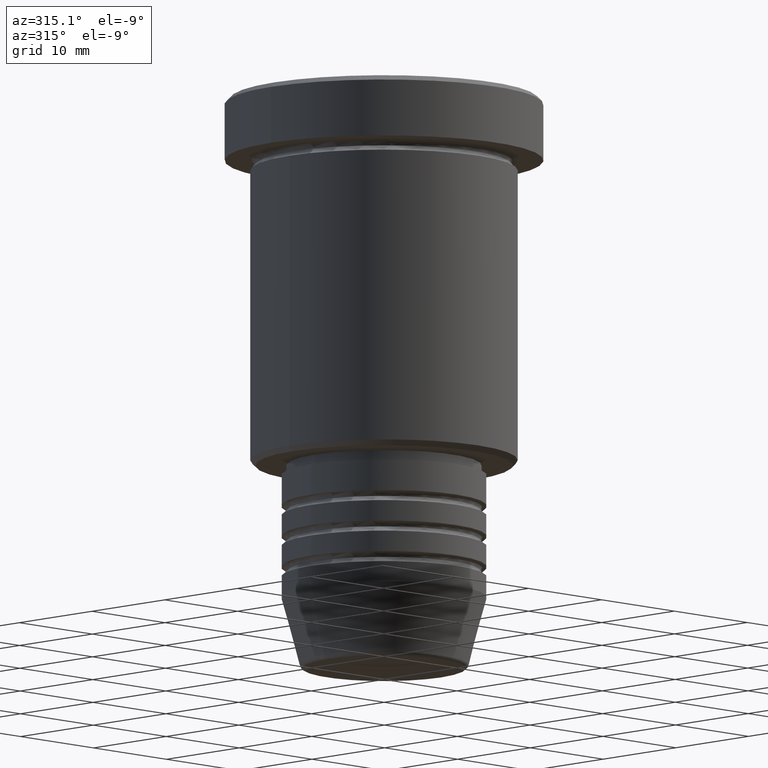
[diagram: clean part render]
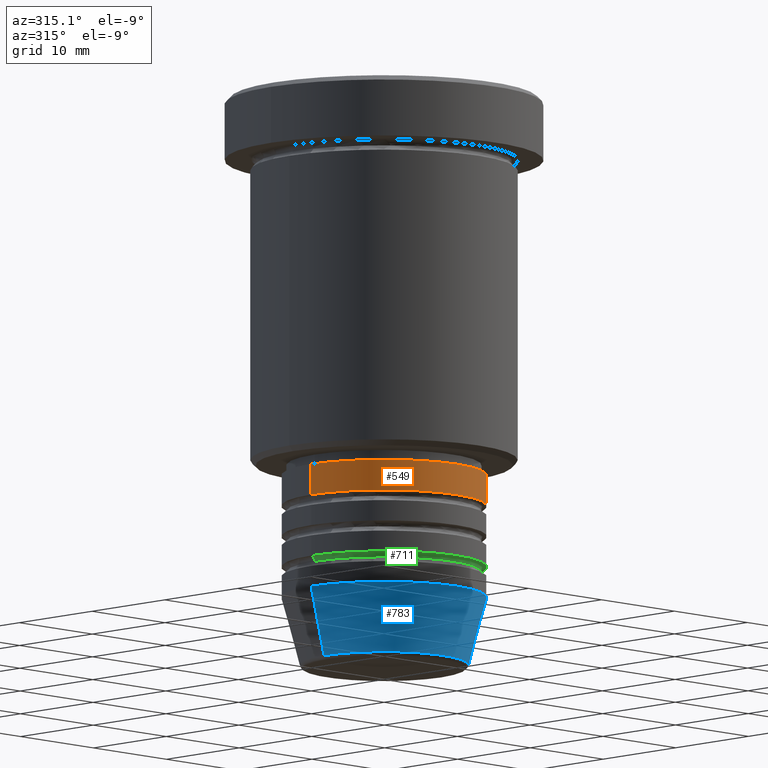
[diagram: same view with three faces highlighted in distinct colors, each labeled with its STEP entity id]
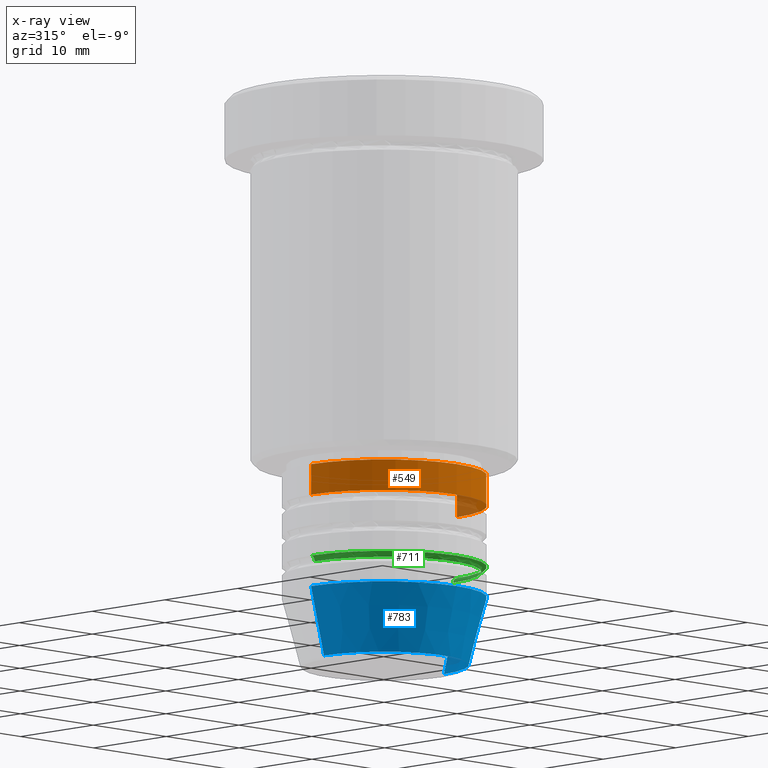
[diagram: x-ray of the same camera — body ghosted, the three highlighted faces saturated]
A machine part, auxiliary view with three faces highlighted in distinct colors.
The next image is the same camera in x-ray (body ghosted, the three faces saturated) — at least one of them is partly hidden behind the body in this view.
Their STEP definitions:

[orange] entity #549 — the highlighted cylindrical surface (partial cylindrical patch) has radius 10 mm, axis along (-0, -0, 1).
#22 = CARTESIAN_POINT ( 'NONE',  ( 0.000000000000000000, 0.000000000000000000, -37.00000000000000000 ) ) ;
#59 = DIRECTION ( 'NONE',  ( -0.000000000000000000, -0.000000000000000000, 1.000000000000000000 ) ) ;
#68 = LINE ( 'NONE', #988, #815 ) ;
#76 = DIRECTION ( 'NONE',  ( -0.000000000000000000, -0.000000000000000000, 1.000000000000000000 ) ) ;
#119 = CARTESIAN_POINT ( 'NONE',  ( -10.00000000000000000, 1.224646799147353256E-15, -39.99999999999997158 ) ) ;
#123 = DIRECTION ( 'NONE',  ( -0.000000000000000000, -0.000000000000000000, 1.000000000000000000 ) ) ;
#128 = DIRECTION ( 'NONE',  ( 1.000000000000000000, 0.000000000000000000, 0.000000000000000000 ) ) ;
#145 = VERTEX_POINT ( 'NONE', #821 ) ;
#160 = ORIENTED_EDGE ( 'NONE', *, *, #329, .T. ) ;
#161 = VECTOR ( 'NONE', #123, 1000.000000000000000 ) ;
#217 = CARTESIAN_POINT ( 'NONE',  ( -10.00000000000000000, 1.224646799147353256E-15, -37.00000000000000000 ) ) ;
#299 = DIRECTION ( 'NONE',  ( 1.000000000000000000, 0.000000000000000000, 0.000000000000000000 ) ) ;
#329 = EDGE_CURVE ( 'NONE', #417, #145, #439, .T. ) ;
#333 = DIRECTION ( 'NONE',  ( -0.000000000000000000, -0.000000000000000000, 1.000000000000000000 ) ) ;
#340 = CARTESIAN_POINT ( 'NONE',  ( 10.00000000000000000, 0.000000000000000000, -37.00000000000000000 ) ) ;
#349 = CARTESIAN_POINT ( 'NONE',  ( 0.000000000000000000, 0.000000000000000000, -39.99999999999997158 ) ) ;
#401 = FACE_OUTER_BOUND ( 'NONE', #887, .T. ) ;
#404 = LINE ( 'NONE', #503, #161 ) ;
#417 = VERTEX_POINT ( 'NONE', #119 ) ;
#439 = CIRCLE ( 'NONE', #591, 10.00000000000000000 ) ;
#482 = DIRECTION ( 'NONE',  ( -0.000000000000000000, -0.000000000000000000, 1.000000000000000000 ) ) ;
#503 = CARTESIAN_POINT ( 'NONE',  ( 10.00000000000000000, 0.000000000000000000, 0.000000000000000000 ) ) ;
#514 = VERTEX_POINT ( 'NONE', #217 ) ;
#522 = EDGE_CURVE ( 'NONE', #514, #658, #726, .T. ) ;
#549 = ADVANCED_FACE ( 'NONE', ( #401 ), #1018, .T. ) ;
#591 = AXIS2_PLACEMENT_3D ( 'NONE', #349, #76, #715 ) ;
#658 = VERTEX_POINT ( 'NONE', #340 ) ;
#687 = AXIS2_PLACEMENT_3D ( 'NONE', #1065, #333, #128 ) ;
#715 = DIRECTION ( 'NONE',  ( 1.000000000000000000, 0.000000000000000000, 0.000000000000000000 ) ) ;
#726 = CIRCLE ( 'NONE', #825, 10.00000000000000000 ) ;
#748 = EDGE_CURVE ( 'NONE', #417, #514, #68, .T. ) ;
#788 = ORIENTED_EDGE ( 'NONE', *, *, #877, .T. ) ;
#815 = VECTOR ( 'NONE', #59, 1000.000000000000000 ) ;
#821 = CARTESIAN_POINT ( 'NONE',  ( 10.00000000000000000, 0.000000000000000000, -39.99999999999997158 ) ) ;
#825 = AXIS2_PLACEMENT_3D ( 'NONE', #22, #482, #299 ) ;
#877 = EDGE_CURVE ( 'NONE', #145, #658, #404, .T. ) ;
#887 = EDGE_LOOP ( 'NONE', ( #944, #160, #788, #1076 ) ) ;
#944 = ORIENTED_EDGE ( 'NONE', *, *, #748, .F. ) ;
#988 = CARTESIAN_POINT ( 'NONE',  ( -10.00000000000000000, 1.224646799147353256E-15, 0.000000000000000000 ) ) ;
#1018 = CYLINDRICAL_SURFACE ( 'NONE', #687, 10.00000000000000000 ) ;
#1065 = CARTESIAN_POINT ( 'NONE',  ( 0.000000000000000000, 0.000000000000000000, 0.000000000000000000 ) ) ;
#1076 = ORIENTED_EDGE ( 'NONE', *, *, #522, .F. ) ;

[blue] entity #783 — the highlighted conical surface has half-angle 15 deg.
#58 = VERTEX_POINT ( 'NONE', #1066 ) ;
#79 = AXIS2_PLACEMENT_3D ( 'NONE', #719, #1083, #181 ) ;
#137 = ORIENTED_EDGE ( 'NONE', *, *, #732, .T. ) ;
#181 = DIRECTION ( 'NONE',  ( 1.000000000000000000, 0.000000000000000000, 0.000000000000000000 ) ) ;
#183 = CARTESIAN_POINT ( 'NONE',  ( 10.00000000000000000, 0.000000000000000000, -48.99999999999999289 ) ) ;
#187 = EDGE_CURVE ( 'NONE', #332, #577, #562, .T. ) ;
#226 = VERTEX_POINT ( 'NONE', #183 ) ;
#234 = EDGE_LOOP ( 'NONE', ( #1140, #137, #760, #596 ) ) ;
#278 = AXIS2_PLACEMENT_3D ( 'NONE', #1169, #720, #895 ) ;
#320 = DIRECTION ( 'NONE',  ( -0.000000000000000000, -0.000000000000000000, 1.000000000000000000 ) ) ;
#332 = VERTEX_POINT ( 'NONE', #539 ) ;
#497 = CARTESIAN_POINT ( 'NONE',  ( 0.000000000000000000, 0.000000000000000000, -48.99999999999999289 ) ) ;
#539 = CARTESIAN_POINT ( 'NONE',  ( -8.223655072137191269, 1.115877042642912054E-15, -55.62940952255125637 ) ) ;
#542 = LINE ( 'NONE', #861, #909 ) ;
#562 = LINE ( 'NONE', #920, #1048 ) ;
#577 = VERTEX_POINT ( 'NONE', #690 ) ;
#596 = ORIENTED_EDGE ( 'NONE', *, *, #625, .F. ) ;
#613 = CIRCLE ( 'NONE', #1035, 10.00000000000000000 ) ;
#625 = EDGE_CURVE ( 'NONE', #577, #226, #613, .T. ) ;
#690 = CARTESIAN_POINT ( 'NONE',  ( -10.00000000000000000, 1.224646799147353256E-15, -48.99999999999999289 ) ) ;
#719 = CARTESIAN_POINT ( 'NONE',  ( 0.000000000000000000, 0.000000000000000000, -48.99999999999999289 ) ) ;
#720 = DIRECTION ( 'NONE',  ( -0.000000000000000000, -0.000000000000000000, 1.000000000000000000 ) ) ;
#732 = EDGE_CURVE ( 'NONE', #332, #58, #1026, .T. ) ;
#759 = DIRECTION ( 'NONE',  ( 0.2588190451025213501, 0.000000000000000000, 0.9659258262890680902 ) ) ;
#760 = ORIENTED_EDGE ( 'NONE', *, *, #792, .T. ) ;
#783 = ADVANCED_FACE ( 'NONE', ( #811 ), #1174, .T. ) ;
#792 = EDGE_CURVE ( 'NONE', #58, #226, #542, .T. ) ;
#811 = FACE_OUTER_BOUND ( 'NONE', #234, .T. ) ;
#861 = CARTESIAN_POINT ( 'NONE',  ( 10.00000000000000000, 0.000000000000000000, -48.99999999999999289 ) ) ;
#884 = DIRECTION ( 'NONE',  ( 1.000000000000000000, 0.000000000000000000, 0.000000000000000000 ) ) ;
#895 = DIRECTION ( 'NONE',  ( 1.000000000000000000, 0.000000000000000000, 0.000000000000000000 ) ) ;
#909 = VECTOR ( 'NONE', #759, 1000.000000000000000 ) ;
#920 = CARTESIAN_POINT ( 'NONE',  ( -10.00000000000000000, 1.224646799147353256E-15, -48.99999999999999289 ) ) ;
#1026 = CIRCLE ( 'NONE', #278, 8.223655072137191269 ) ;
#1035 = AXIS2_PLACEMENT_3D ( 'NONE', #497, #320, #884 ) ;
#1048 = VECTOR ( 'NONE', #1178, 1000.000000000000000 ) ;
#1066 = CARTESIAN_POINT ( 'NONE',  ( 8.223655072137191269, 0.000000000000000000, -55.62940952255125637 ) ) ;
#1083 = DIRECTION ( 'NONE',  ( -0.000000000000000000, -0.000000000000000000, 1.000000000000000000 ) ) ;
#1140 = ORIENTED_EDGE ( 'NONE', *, *, #187, .F. ) ;
#1169 = CARTESIAN_POINT ( 'NONE',  ( 0.000000000000000000, 0.000000000000000000, -55.62940952255125637 ) ) ;
#1174 = CONICAL_SURFACE ( 'NONE', #79, 10.00000000000000000, 0.2617993877991500740 ) ;
#1178 = DIRECTION ( 'NONE',  ( -0.2588190451025213501, 3.169619151431772337E-17, 0.9659258262890680902 ) ) ;

[green] entity #711 — the highlighted toroidal blend (fillet) surface has major radius 10 mm and minor (blend) radius 0.5 mm.
#17 = VERTEX_POINT ( 'NONE', #1170 ) ;
#18 = EDGE_CURVE ( 'NONE', #875, #693, #175, .T. ) ;
#20 = ORIENTED_EDGE ( 'NONE', *, *, #122, .T. ) ;
#81 = DIRECTION ( 'NONE',  ( -0.000000000000000000, -0.000000000000000000, 1.000000000000000000 ) ) ;
#122 = EDGE_CURVE ( 'NONE', #875, #17, #823, .T. ) ;
#146 = AXIS2_PLACEMENT_3D ( 'NONE', #214, #787, #243 ) ;
#175 = CIRCLE ( 'NONE', #513, 0.5000000000000004441 ) ;
#182 = FACE_OUTER_BOUND ( 'NONE', #1167, .T. ) ;
#214 = CARTESIAN_POINT ( 'NONE',  ( 0.000000000000000000, 0.000000000000000000, -45.99999999999997868 ) ) ;
#224 = ORIENTED_EDGE ( 'NONE', *, *, #462, .F. ) ;
#243 = DIRECTION ( 'NONE',  ( 1.000000000000000000, 0.000000000000000000, 0.000000000000000000 ) ) ;
#261 = CARTESIAN_POINT ( 'NONE',  ( -9.500000000000001776, 1.194030629168669469E-15, -46.49999999999998579 ) ) ;
#335 = TOROIDAL_SURFACE ( 'NONE', #626, 10.00000000000000178, 0.5000000000000000000 ) ;
#411 = DIRECTION ( 'NONE',  ( -1.224646799147353207E-16, 1.000000000000000000, 0.000000000000000000 ) ) ;
#434 = CARTESIAN_POINT ( 'NONE',  ( 10.00000000000000178, 1.224646799147353454E-15, -46.49999999999997868 ) ) ;
#436 = CARTESIAN_POINT ( 'NONE',  ( 0.000000000000000000, 0.000000000000000000, -46.49999999999997868 ) ) ;
#447 = CARTESIAN_POINT ( 'NONE',  ( -10.00000000000000000, 1.224646799147353256E-15, -45.99999999999997868 ) ) ;
#455 = ORIENTED_EDGE ( 'NONE', *, *, #18, .F. ) ;
#462 = EDGE_CURVE ( 'NONE', #693, #646, #918, .T. ) ;
#513 = AXIS2_PLACEMENT_3D ( 'NONE', #1165, #1058, #802 ) ;
#550 = DIRECTION ( 'NONE',  ( 1.000000000000000000, 0.000000000000000000, 0.000000000000000000 ) ) ;
#555 = AXIS2_PLACEMENT_3D ( 'NONE', #567, #81, #550 ) ;
#567 = CARTESIAN_POINT ( 'NONE',  ( 0.000000000000000000, 0.000000000000000000, -46.49999999999998579 ) ) ;
#626 = AXIS2_PLACEMENT_3D ( 'NONE', #436, #1175, #730 ) ;
#646 = VERTEX_POINT ( 'NONE', #694 ) ;
#693 = VERTEX_POINT ( 'NONE', #447 ) ;
#694 = CARTESIAN_POINT ( 'NONE',  ( 10.00000000000000000, 0.000000000000000000, -45.99999999999997868 ) ) ;
#704 = ORIENTED_EDGE ( 'NONE', *, *, #963, .T. ) ;
#711 = ADVANCED_FACE ( 'NONE', ( #182 ), #335, .F. ) ;
#730 = DIRECTION ( 'NONE',  ( -1.000000000000000000, 0.000000000000000000, 0.000000000000000000 ) ) ;
#775 = DIRECTION ( 'NONE',  ( -1.000000000000000000, -1.224646799147353454E-16, 0.000000000000000000 ) ) ;
#787 = DIRECTION ( 'NONE',  ( -0.000000000000000000, -0.000000000000000000, 1.000000000000000000 ) ) ;
#802 = DIRECTION ( 'NONE',  ( 0.000000000000000000, 0.000000000000000000, -1.000000000000000000 ) ) ;
#823 = CIRCLE ( 'NONE', #555, 9.500000000000001776 ) ;
#875 = VERTEX_POINT ( 'NONE', #261 ) ;
#888 = AXIS2_PLACEMENT_3D ( 'NONE', #434, #411, #775 ) ;
#918 = CIRCLE ( 'NONE', #146, 10.00000000000000000 ) ;
#963 = EDGE_CURVE ( 'NONE', #17, #646, #1155, .T. ) ;
#1058 = DIRECTION ( 'NONE',  ( -0.000000000000000000, -1.000000000000000000, -0.000000000000000000 ) ) ;
#1155 = CIRCLE ( 'NONE', #888, 0.5000000000000004441 ) ;
#1165 = CARTESIAN_POINT ( 'NONE',  ( -10.00000000000000178, 0.000000000000000000, -46.49999999999997868 ) ) ;
#1167 = EDGE_LOOP ( 'NONE', ( #20, #704, #224, #455 ) ) ;
#1170 = CARTESIAN_POINT ( 'NONE',  ( 9.500000000000001776, 0.000000000000000000, -46.49999999999998579 ) ) ;
#1175 = DIRECTION ( 'NONE',  ( 0.000000000000000000, 0.000000000000000000, -1.000000000000000000 ) ) ;